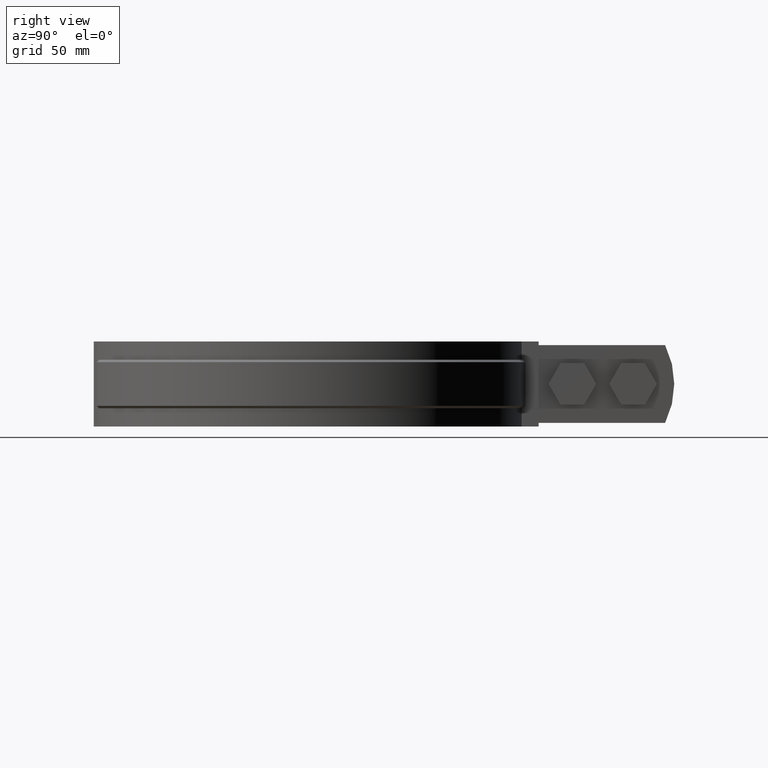
[diagram: clean part render]
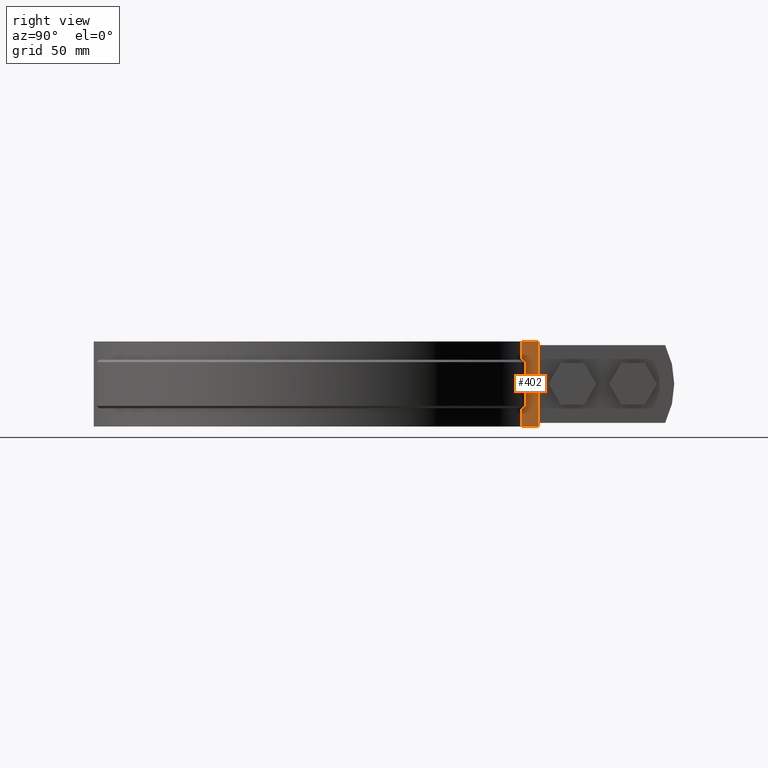
[diagram: same view with one face highlighted and labeled with its STEP entity id]
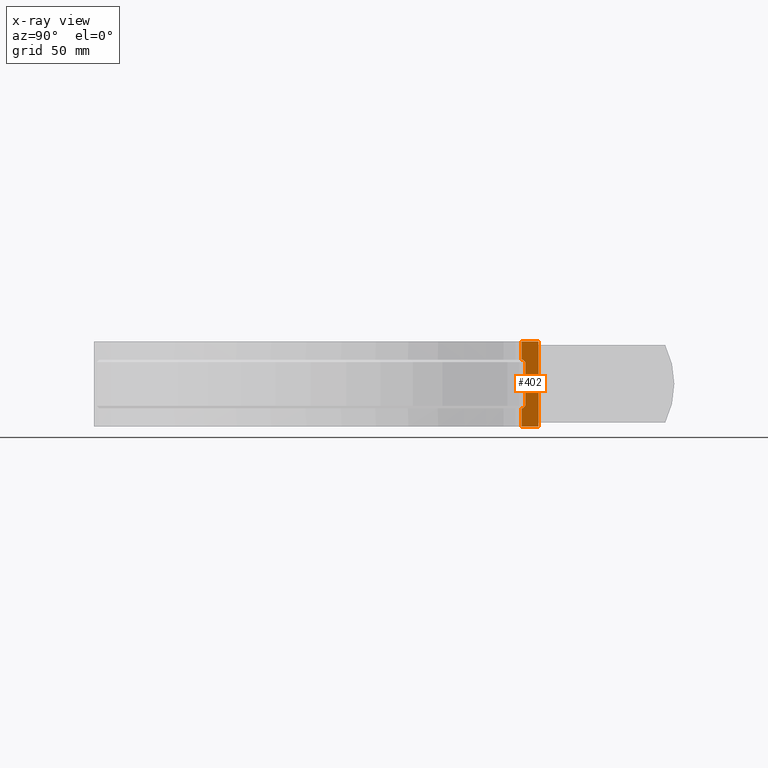
[diagram: x-ray of the same camera — body ghosted, the highlighted face saturated]
A machine part, right view. The second image highlights one B-rep face of the part: STEP entity #402.
The next image is the same camera in x-ray: the body ghosted, the highlighted face saturated — about 0% of this face is hidden behind the body in this view.
In plain terms, the highlighted planar face has unit normal (1, -0, 0).
Its self-contained STEP definition (entity closure, byte-faithful):
#402 = ADVANCED_FACE( '', ( #664 ), #665, .T. );
#664 = FACE_OUTER_BOUND( '', #1742, .T. );
#665 = PLANE( '', #1743 );
#1742 = EDGE_LOOP( '', ( #4122, #4123, #4124, #4125, #4126, #4127, #4128, #4129, #4130, #4131 ) );
#1743 = AXIS2_PLACEMENT_3D( '', #4132, #4133, #4134 );
#4122 = ORIENTED_EDGE( '', *, *, #4892, .F. );
#4123 = ORIENTED_EDGE( '', *, *, #4893, .T. );
#4124 = ORIENTED_EDGE( '', *, *, #4876, .T. );
#4125 = ORIENTED_EDGE( '', *, *, #4894, .F. );
#4126 = ORIENTED_EDGE( '', *, *, #4895, .T. );
#4127 = ORIENTED_EDGE( '', *, *, #4841, .T. );
#4128 = ORIENTED_EDGE( '', *, *, #4859, .F. );
#4129 = ORIENTED_EDGE( '', *, *, #4896, .F. );
#4130 = ORIENTED_EDGE( '', *, *, #4897, .F. );
#4131 = ORIENTED_EDGE( '', *, *, #4898, .T. );
#4132 = CARTESIAN_POINT( '', ( 8.40000000000000, 88.1004540283420, -33.5000000000000 ) );
#4133 = DIRECTION( '', ( 1.00000000000000, -6.42490176287706E-017, 0.000000000000000 ) );
#4134 = DIRECTION( '', ( 0.000000000000000, 0.000000000000000, 1.00000000000000 ) );
#4841 = EDGE_CURVE( '', #5420, #5417, #5421, .T. );
#4859 = EDGE_CURVE( '', #5448, #5417, #5450, .T. );
#4876 = EDGE_CURVE( '', #5477, #5475, #5478, .T. );
#4892 = EDGE_CURVE( '', #5504, #5505, #5506, .F. );
#4893 = EDGE_CURVE( '', #5504, #5477, #5507, .F. );
#4894 = EDGE_CURVE( '', #5508, #5475, #5509, .F. );
#4895 = EDGE_CURVE( '', #5508, #5420, #5510, .F. );
#4896 = EDGE_CURVE( '', #5511, #5448, #5512, .F. );
#4897 = EDGE_CURVE( '', #5513, #5511, #5514, .F. );
#4898 = EDGE_CURVE( '', #5513, #5505, #5515, .F. );
#5417 = VERTEX_POINT( '', #7742 );
#5420 = VERTEX_POINT( '', #7746 );
#5421 = LINE( '', #7747, #7748 );
#5448 = VERTEX_POINT( '', #7987 );
#5450 = LINE( '', #7989, #7990 );
#5475 = VERTEX_POINT( '', #8276 );
#5477 = VERTEX_POINT( '', #8278 );
#5478 = LINE( '', #8279, #8280 );
#5504 = VERTEX_POINT( '', #8358 );
#5505 = VERTEX_POINT( '', #8359 );
#5506 = LINE( '', #8360, #8361 );
#5507 = B_SPLINE_CURVE_WITH_KNOTS( '', 3, ( #8362, #8363, #8364, #8365 ), .UNSPECIFIED., .F., .F., ( 4, 4 ), ( 707.223285954089, 707.224715328415 ), .UNSPECIFIED. );
#5508 = VERTEX_POINT( '', #8366 );
#5509 = LINE( '', #8367, #8368 );
#5510 = LINE( '', #8369, #8370 );
#5511 = VERTEX_POINT( '', #8371 );
#5512 = LINE( '', #8372, #8373 );
#5513 = VERTEX_POINT( '', #8374 );
#5514 = LINE( '', #8375, #8376 );
#5515 = B_SPLINE_CURVE_WITH_KNOTS( '', 3, ( #8377, #8378, #8379, #8380 ), .UNSPECIFIED., .F., .F., ( 4, 4 ), ( 706.979779911660, 706.981197264146 ), .UNSPECIFIED. );
#7742 = CARTESIAN_POINT( '', ( 8.40000000000000, 95.1000000000000, 1.50000000000000 ) );
#7746 = CARTESIAN_POINT( '', ( 8.40000000000000, 95.1000000000000, -33.5000000000000 ) );
#7747 = CARTESIAN_POINT( '', ( 8.40000000000000, 95.1000000000000, -33.5000000000000 ) );
#7748 = VECTOR( '', #8981, 1000.00000000000 );
#7987 = CARTESIAN_POINT( '', ( 8.40000000000000, 88.1004540283420, 1.50000000000000 ) );
#7989 = CARTESIAN_POINT( '', ( 8.40000000000000, -5.39691748081673E-016, 1.50000000000000 ) );
#7990 = VECTOR( '', #9003, 1000.00000000000 );
#8276 = CARTESIAN_POINT( '', ( 8.40000000000000, 88.1004540283420, -26.0000000000000 ) );
#8278 = CARTESIAN_POINT( '', ( 8.40000000000000, 88.6027087622043, -26.0000000000000 ) );
#8279 = CARTESIAN_POINT( '', ( 8.40000000000000, 88.1004540283420, -26.0000000000000 ) );
#8280 = VECTOR( '', #9027, 1000.00000000000 );
#8358 = CARTESIAN_POINT( '', ( 8.40000000000000, 89.6071425724534, -25.0000000000000 ) );
#8359 = CARTESIAN_POINT( '', ( 8.40000000000000, 89.6071425724534, -7.00000000000002 ) );
#8360 = CARTESIAN_POINT( '', ( 8.40000000000000, 89.6071425724534, -26.0000000000000 ) );
#8361 = VECTOR( '', #9048, 1000.00000000000 );
#8362 = CARTESIAN_POINT( '', ( 8.40000000000000, 88.6027087621956, -26.0000000000087 ) );
#8363 = CARTESIAN_POINT( '', ( 8.40000000000000, 88.9375283399124, -25.6666750389713 ) );
#8364 = CARTESIAN_POINT( '', ( 8.40000000000000, 89.2723395172761, -25.3333416122108 ) );
#8365 = CARTESIAN_POINT( '', ( 8.40000000000000, 89.6071425724241, -25.0000000000292 ) );
#8366 = CARTESIAN_POINT( '', ( 8.40000000000000, 88.1004540283420, -33.5000000000000 ) );
#8367 = CARTESIAN_POINT( '', ( 8.40000000000000, 88.1004540283420, -33.5000000000000 ) );
#8368 = VECTOR( '', #9049, 1000.00000000000 );
#8369 = CARTESIAN_POINT( '', ( 8.40000000000000, 88.1004540283420, -33.5000000000000 ) );
#8370 = VECTOR( '', #9050, 1000.00000000000 );
#8371 = CARTESIAN_POINT( '', ( 8.40000000000000, 88.1004540283420, -6.00000000000000 ) );
#8372 = CARTESIAN_POINT( '', ( 8.40000000000000, 88.1004540283420, -33.5000000000000 ) );
#8373 = VECTOR( '', #9051, 1000.00000000000 );
#8374 = CARTESIAN_POINT( '', ( 8.40000000000000, 88.6027087622043, -6.00000000000000 ) );
#8375 = CARTESIAN_POINT( '', ( 8.39999999999999, -72.0000000000000, -6.00000000000000 ) );
#8376 = VECTOR( '', #9052, 1000.00000000000 );
#8377 = CARTESIAN_POINT( '', ( 8.40000000000000, 89.6071425724316, -6.99999999997831 ) );
#8378 = CARTESIAN_POINT( '', ( 8.40000000000000, 89.2723395288580, -6.66665839932057 ) );
#8379 = CARTESIAN_POINT( '', ( 8.40000000000000, 88.9375283516246, -6.33332497268860 ) );
#8380 = CARTESIAN_POINT( '', ( 8.40000000000000, 88.6027087622002, -5.99999999999592 ) );
#8981 = DIRECTION( '', ( 0.000000000000000, 0.000000000000000, 1.00000000000000 ) );
#9003 = DIRECTION( '', ( 6.42490176287706E-017, 1.00000000000000, 0.000000000000000 ) );
#9027 = DIRECTION( '', ( -6.42490176287706E-017, -1.00000000000000, 0.000000000000000 ) );
#9048 = DIRECTION( '', ( 0.000000000000000, 0.000000000000000, -1.00000000000000 ) );
#9049 = DIRECTION( '', ( 0.000000000000000, 0.000000000000000, -1.00000000000000 ) );
#9050 = DIRECTION( '', ( -6.42490176287706E-017, -1.00000000000000, 0.000000000000000 ) );
#9051 = DIRECTION( '', ( 0.000000000000000, 0.000000000000000, -1.00000000000000 ) );
#9052 = DIRECTION( '', ( 6.42490176287706E-017, 1.00000000000000, 0.000000000000000 ) );